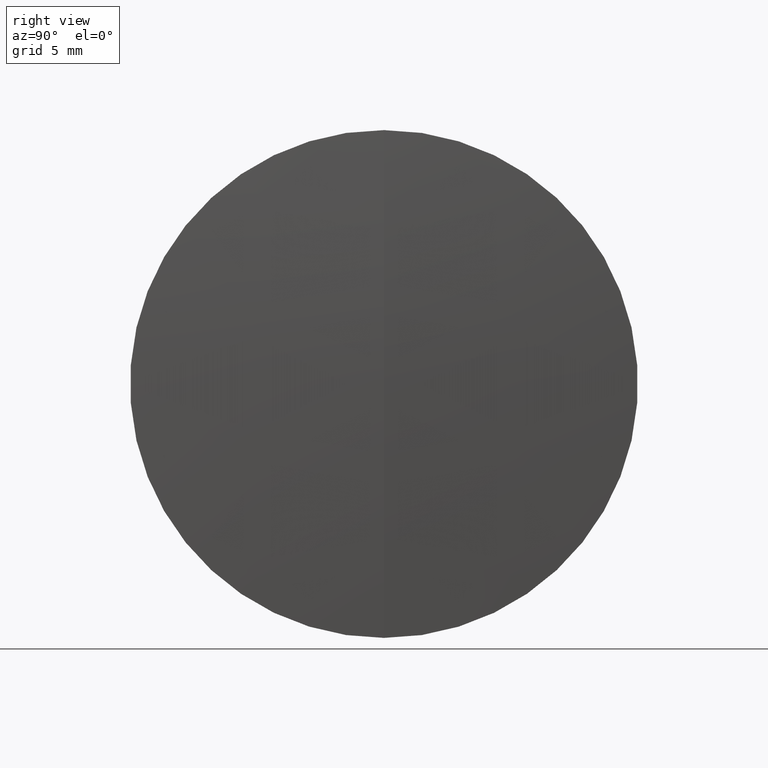
[diagram: clean part render]
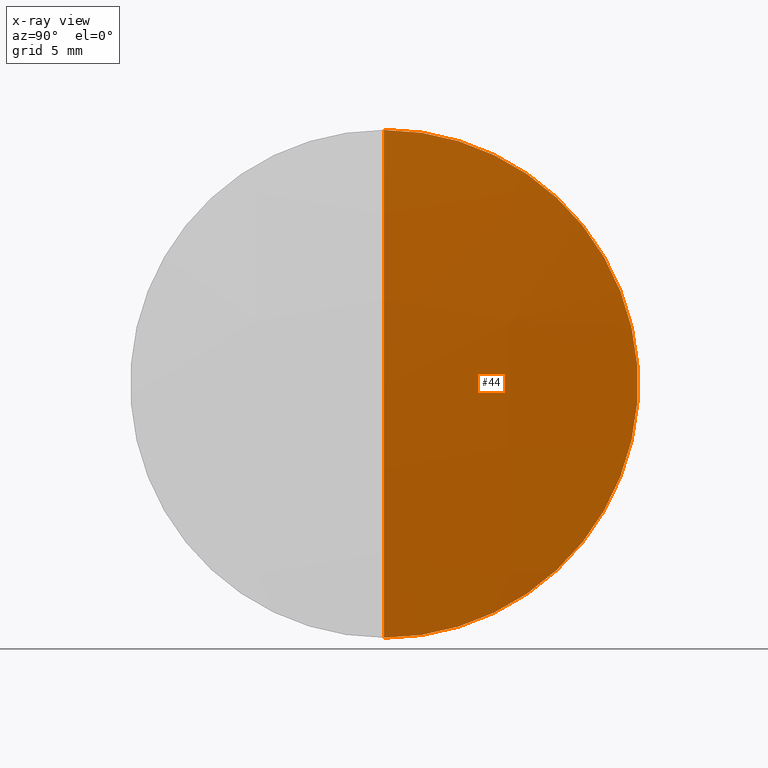
[diagram: x-ray — body ghosted, one internal face saturated and labeled with its STEP entity id]
A machine part, right view, then the same camera in x-ray: the body is ghosted and one INTERNAL B-rep face — a face not visible from any outside direction — is saturated and labeled: STEP entity #44.
In plain terms, the highlighted spherical surface has radius 216.3 mm.
Its self-contained STEP definition (entity closure, byte-faithful):
#8 = DIRECTION ( 'NONE',  ( -0.0000000000000000000, 1.000000000000000000, 1.224646799147353200E-016 ) ) ;
#19 = CARTESIAN_POINT ( 'NONE',  ( 317.2069652250824000, 0.0000000000000000000, 9.183549615799121200E-038 ) ) ;
#31 = CARTESIAN_POINT ( 'NONE',  ( 532.9862274353328100, 0.0000000000000000000, 14.99999999999960200 ) ) ;
#40 = SPHERICAL_SURFACE ( 'NONE', #70, 216.3000000000000400 ) ;
#44 = ADVANCED_FACE ( 'NONE', ( #318 ), #40, .T. ) ;
#52 = DIRECTION ( 'NONE',  ( -1.000000000000000000, -0.0000000000000000000, -0.0000000000000000000 ) ) ;
#59 = CARTESIAN_POINT ( 'NONE',  ( 533.5069652250824700, 0.0000000000000000000, 1.324455513277862900E-014 ) ) ;
#61 = DIRECTION ( 'NONE',  ( 0.0000000000000000000, -1.224646799147353500E-016, 1.000000000000000000 ) ) ;
#67 = ORIENTED_EDGE ( 'NONE', *, *, #181, .F. ) ;
#70 = AXIS2_PLACEMENT_3D ( 'NONE', #19, #105, #126 ) ;
#71 = CIRCLE ( 'NONE', #203, 216.3000000000000400 ) ;
#81 = DIRECTION ( 'NONE',  ( 0.0000000000000000000, 0.0000000000000000000, 1.000000000000000000 ) ) ;
#105 = DIRECTION ( 'NONE',  ( 0.0000000000000000000, 1.000000000000000000, 0.0000000000000000000 ) ) ;
#126 = DIRECTION ( 'NONE',  ( 0.0000000000000000000, 0.0000000000000000000, 1.000000000000000000 ) ) ;
#134 = CARTESIAN_POINT ( 'NONE',  ( 317.2069652250824000, 0.0000000000000000000, 9.183549615799121200E-038 ) ) ;
#139 = VERTEX_POINT ( 'NONE', #301 ) ;
#151 = EDGE_CURVE ( 'NONE', #154, #235, #169, .T. ) ;
#154 = VERTEX_POINT ( 'NONE', #59 ) ;
#169 = CIRCLE ( 'NONE', #185, 216.3000000000000400 ) ;
#174 = ORIENTED_EDGE ( 'NONE', *, *, #151, .F. ) ;
#181 = EDGE_CURVE ( 'NONE', #235, #139, #282, .T. ) ;
#184 = DIRECTION ( 'NONE',  ( 0.0000000000000000000, 0.0000000000000000000, -1.000000000000000000 ) ) ;
#185 = AXIS2_PLACEMENT_3D ( 'NONE', #134, #214, #184 ) ;
#203 = AXIS2_PLACEMENT_3D ( 'NONE', #257, #8, #61 ) ;
#214 = DIRECTION ( 'NONE',  ( 0.0000000000000000000, -1.000000000000000000, 0.0000000000000000000 ) ) ;
#227 = ORIENTED_EDGE ( 'NONE', *, *, #286, .T. ) ;
#235 = VERTEX_POINT ( 'NONE', #31 ) ;
#249 = AXIS2_PLACEMENT_3D ( 'NONE', #291, #52, #81 ) ;
#257 = CARTESIAN_POINT ( 'NONE',  ( 317.2069652250824000, 0.0000000000000000000, 9.183549615799121200E-038 ) ) ;
#282 = CIRCLE ( 'NONE', #249, 14.99999999999960200 ) ;
#286 = EDGE_CURVE ( 'NONE', #154, #139, #71, .T. ) ;
#291 = CARTESIAN_POINT ( 'NONE',  ( 532.9862274353328100, 0.0000000000000000000, 0.0000000000000000000 ) ) ;
#301 = CARTESIAN_POINT ( 'NONE',  ( 532.9862274353328100, 1.836970198720981500E-015, -14.99999999999960200 ) ) ;
#318 = FACE_OUTER_BOUND ( 'NONE', #319, .T. ) ;
#319 = EDGE_LOOP ( 'NONE', ( #174, #227, #67 ) ) ;